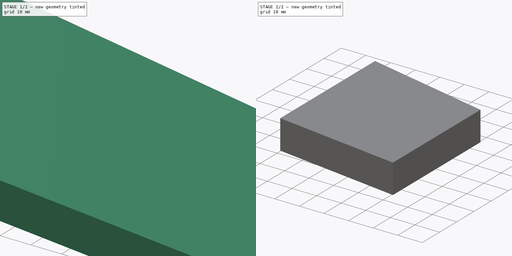
[diagram: build sequence overview — one tinted view per stage of 2, left to right]
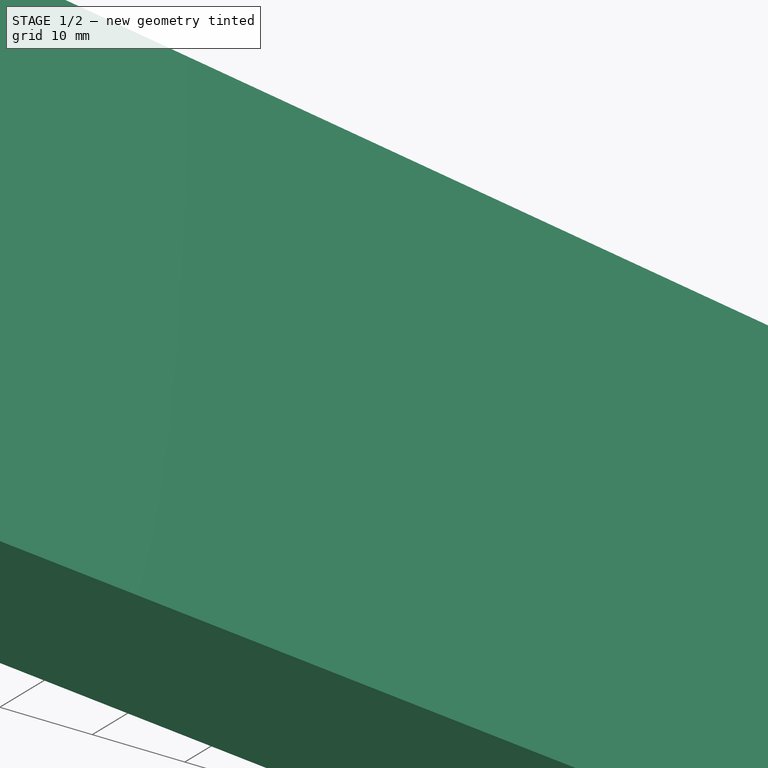
[diagram: stage 1 of 2 — iso view after this stage's code; geometry added in this stage tinted green]
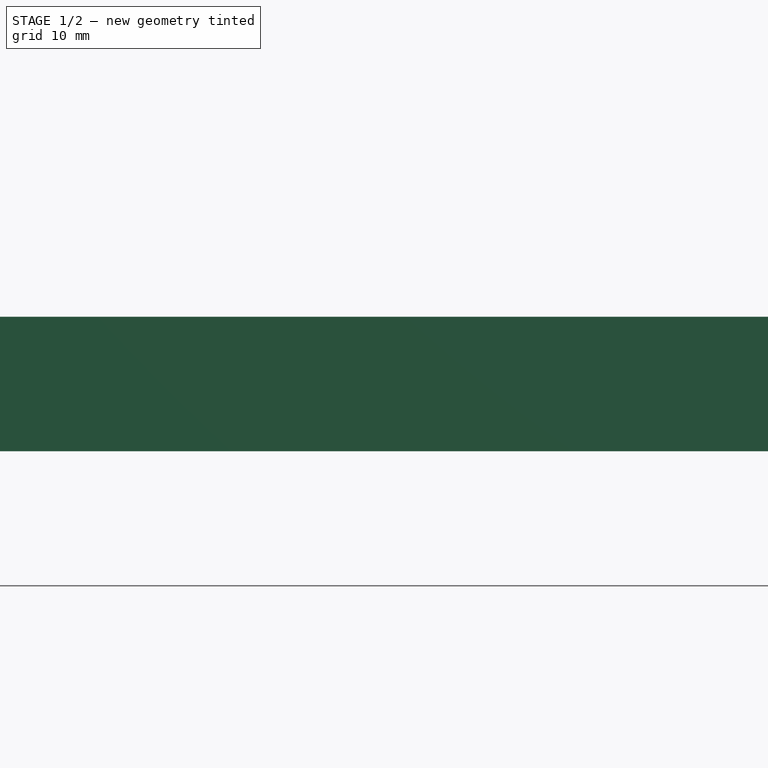
[diagram: stage 1 of 2 — front view after this stage's code; geometry added in this stage tinted green]
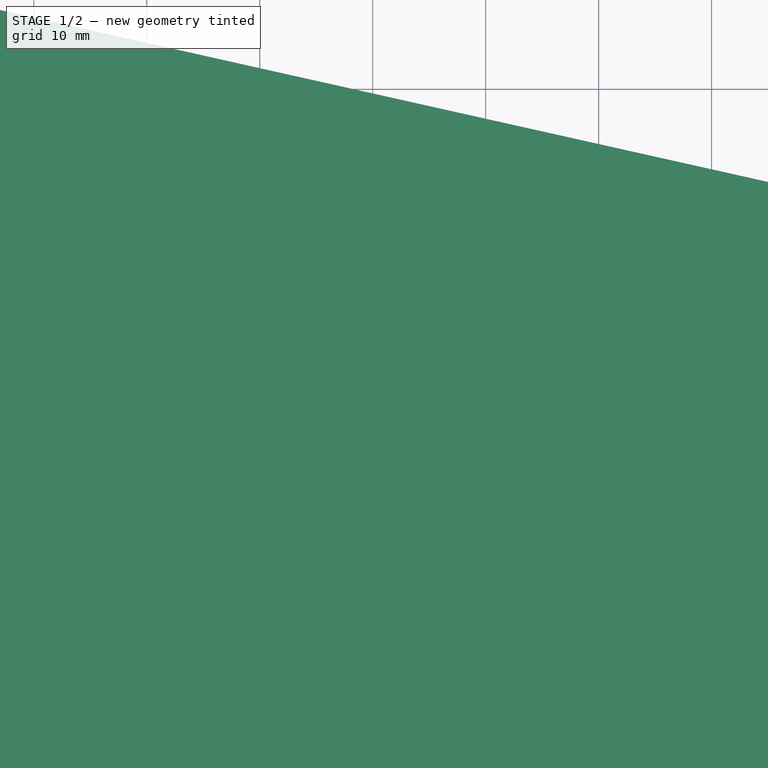
[diagram: stage 1 of 2 — top view after this stage's code; geometry added in this stage tinted green]
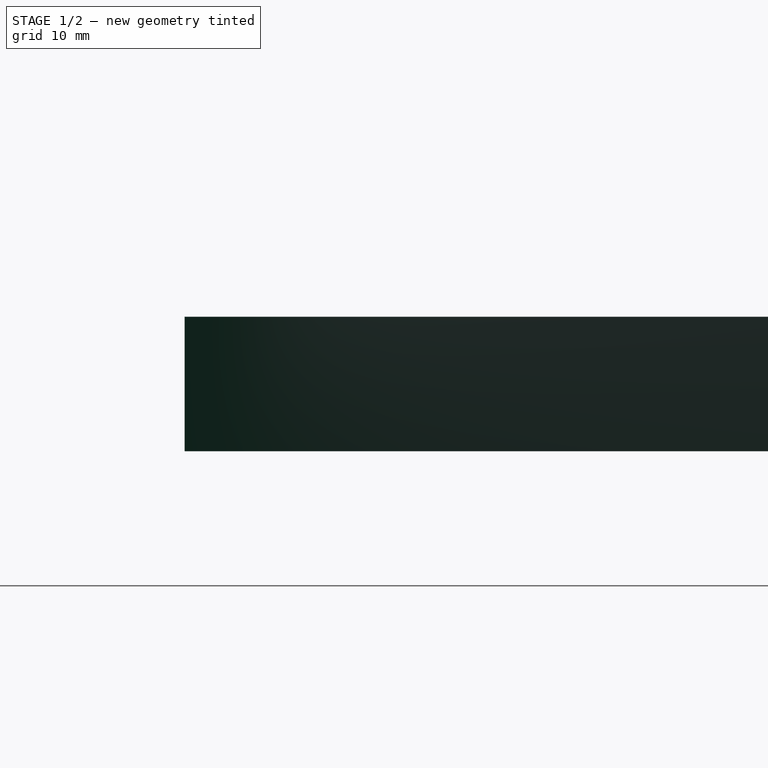
[diagram: stage 1 of 2 — right view after this stage's code; geometry added in this stage tinted green]
FCSTD DOCUMENT  (FreeCAD 0.20R29603 (Git))
Label: LegSpacer
License: All rights reserved
LicenseURL: http://en.wikipedia.org/wiki/All_rights_reserved
objects: App::DocumentObjectGroup×3, Sketcher::SketchObject×2, PartDesign::Pad×1, PartDesign::CoordinateSystem×1, App::FeaturePython×1, PartDesign::Pocket×1, PartDesign::Body×1, App::Part×1
note: 8 computed .brp shape members not serialized (recipe doc carries the construction recipe); baked Part::Feature solids carry a one-line shape summary decoded from their .brp
EXTERNAL_REF file=Parameters.FCStd obj=Spreadsheet

FEATURE [Sketcher::SketchObject] Sketch
  FullyConstrained = false
  MapMode = 5
  Support = -> [XY_Plane]
  expr: Constraints[10] = <<Parameters>>#<<DeskDimensions>>.Leg_Top
  expr: Constraints[16] = <<Parameters>>#<<DeskDimensions>>.Leg_Bottom
  expr: Constraints[5] = <<Parameters>>#<<DeskDimensions>>.Leg_Length
  sketch-geometry (8):
    g0: LineSegment StartX=0 StartY=114.3 StartZ=0 EndX=0 EndY=0 EndZ=0
    g1: LineSegment StartX=0 StartY=0 StartZ=0 EndX=762 EndY=-107.092 EndZ=0
    g2: LineSegment StartX=0 StartY=-107.092 StartZ=0 EndX=762 EndY=-107.092 EndZ=0
    g3: LineSegment StartX=762 StartY=-107.092 StartZ=0 EndX=762 EndY=534.568 EndZ=0
    g4: LineSegment StartX=762 StartY=534.568 StartZ=0 EndX=0 EndY=534.568 EndZ=0
    g5: LineSegment StartX=0 StartY=534.568 StartZ=0 EndX=0 EndY=-107.092 EndZ=0
    g6: LineSegment StartX=762 StartY=-107.092 StartZ=0 EndX=762 EndY=-56.2921 EndZ=0
    g7: LineSegment StartX=762 StartY=-56.2921 StartZ=0 EndX=0 EndY=114.3 EndZ=0
  constraints (22):
    c: Coincident(g4,g5)
    c: Coincident(g5,g2)
    c: Horizontal(g4)
    c: Vertical(g3)
    c: Vertical(g5)
    c: DistanceX(g4,g4) = 762
    c: Coincident(g1,g2)
    c: Angle(g1,g0) = 1.71042
    c: Horizontal(g2)
    c: Vertical(g0)
    c: DistanceY(g0,g0) = 114.3
    c: PointOnObject(g0,g5)
    c: Coincident(g6,g1)
    c: Vertical(g6)
    c: Coincident(g7,g6)
    c: Coincident(g7,g0)
    c: DistanceY(g6,g6) = 50.8
    c: Coincident(g3,g1)
    c: Coincident(g4,g3)
    c: Coincident(g1,g0)
    c: DistanceX(g0) = 0
    c: DistanceY(g0) = 0
FEATURE [PartDesign::Pad] Pad
  Direction = (0,0,1)
  Length = 11.9062
  Length2 = 10
  Profile = -> Sketch
  ReferenceAxis = -> Sketch [N_Axis]
  Type = 0
  expr: Length = <<Parameters>>#<<DeskDimensions>>.Stock_Thickness
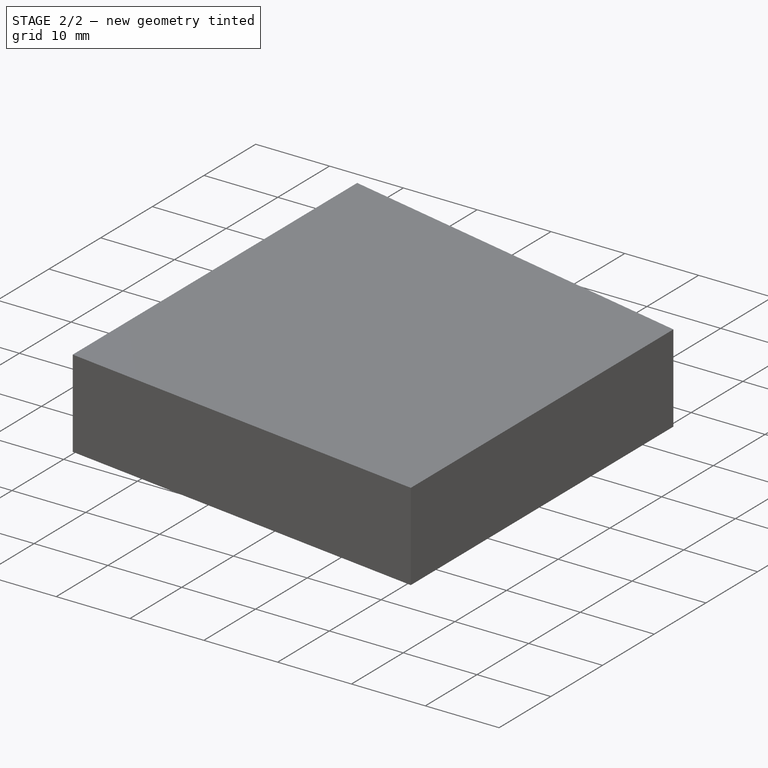
[diagram: stage 2 of 2 — iso view after this stage's code; geometry added in this stage tinted green]
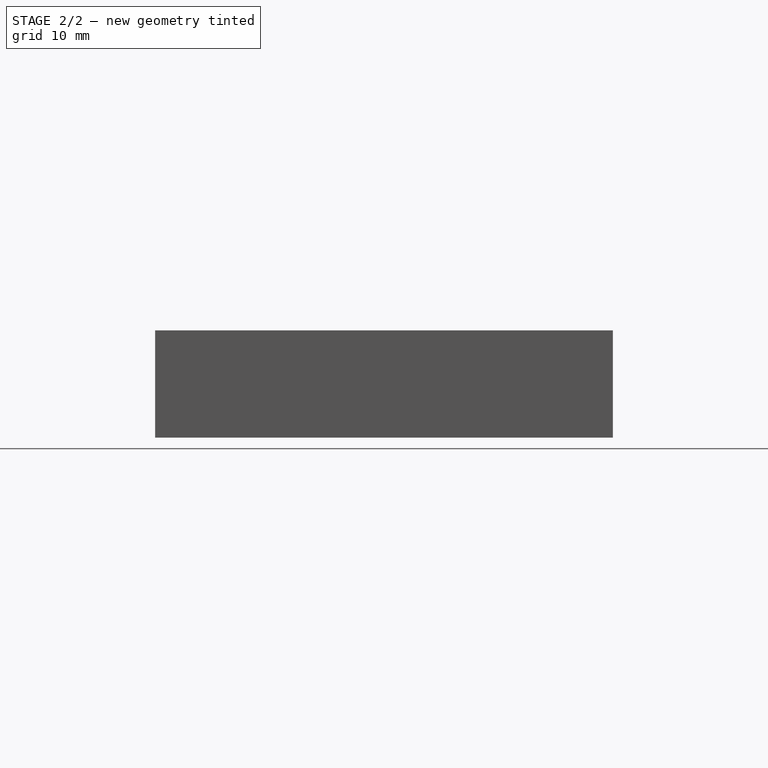
[diagram: stage 2 of 2 — front view after this stage's code; geometry added in this stage tinted green]
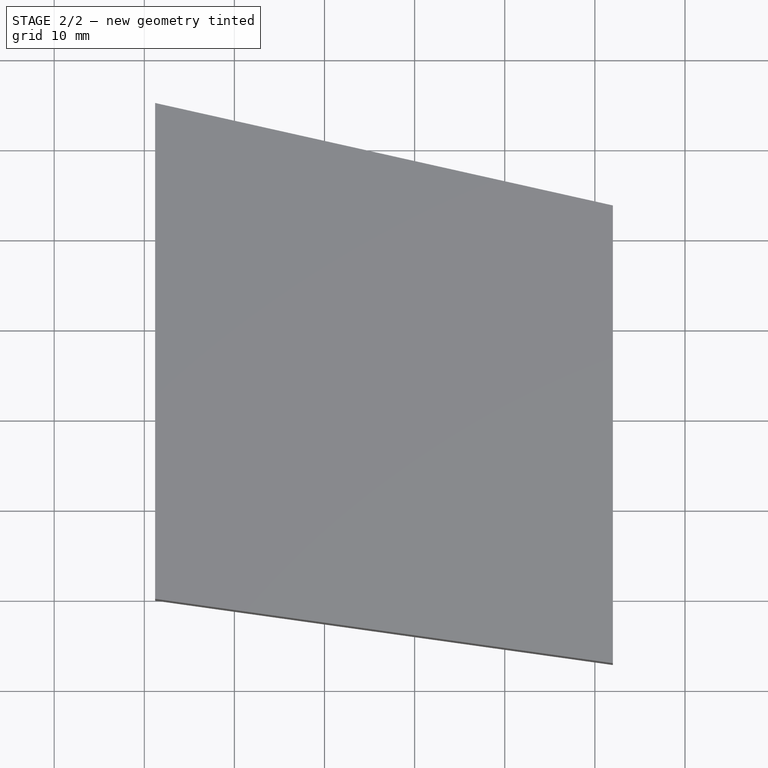
[diagram: stage 2 of 2 — top view after this stage's code; geometry added in this stage tinted green]
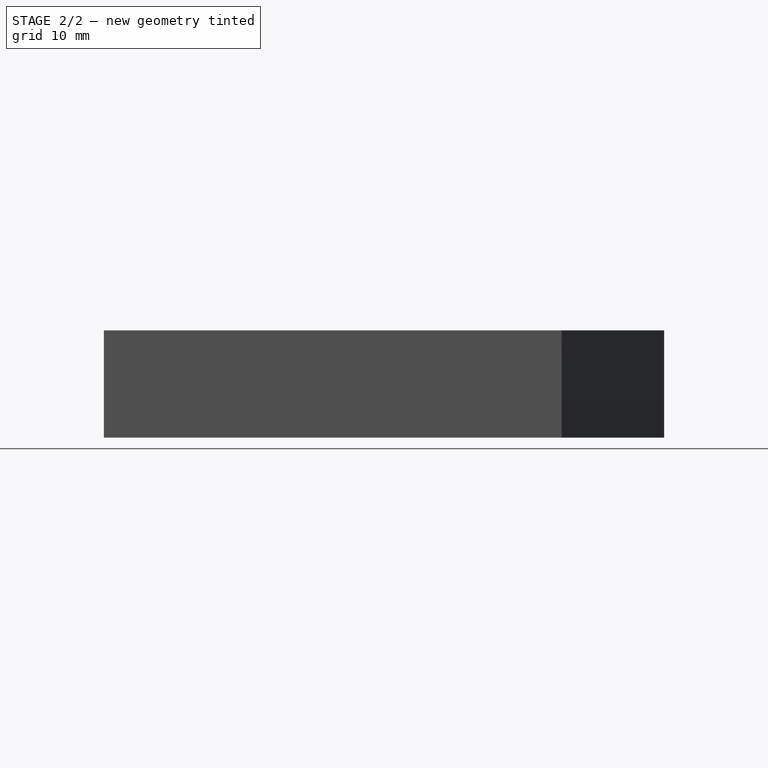
[diagram: stage 2 of 2 — right view after this stage's code; geometry added in this stage tinted green]
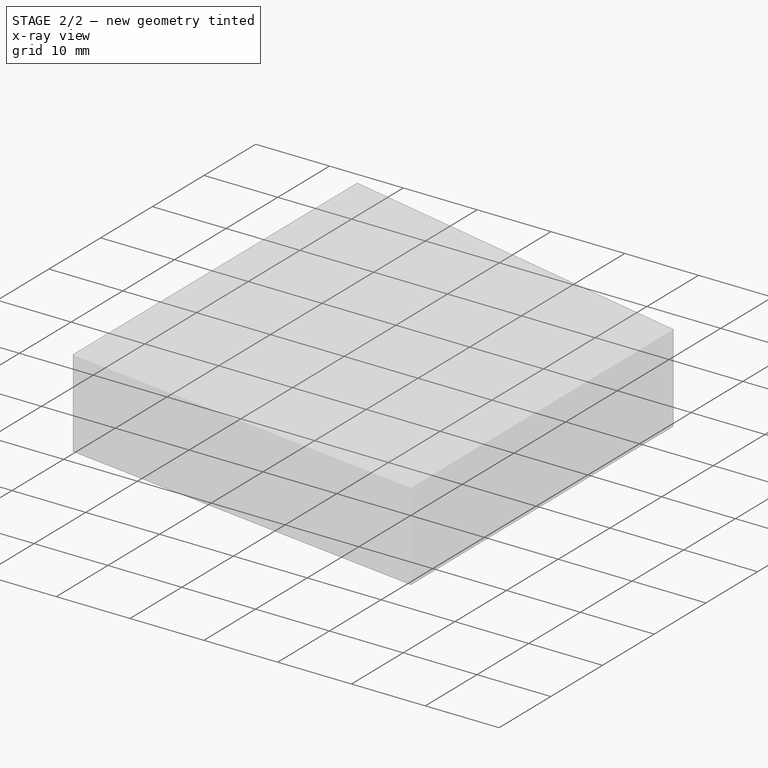
[diagram: stage 2 of 2 — x-ray composite at the iso view; earlier geometry ghosted, this stage's added geometry solid]
FEATURE [App::DocumentObjectGroup] Parts
FEATURE [PartDesign::CoordinateSystem] LCS_Origin
  AttacherType = Attacher::AttachEngine3D
  MapMode = 2
  Support = -> [X_Axis001]
FEATURE [App::DocumentObjectGroup] Constraints
FEATURE [App::FeaturePython] Variables  # WARN: FeaturePython — macro-defined, semantics opaque (R4)
  Type = App::PropertyContainer
FEATURE [App::DocumentObjectGroup] Configurations
FEATURE [Sketcher::SketchObject] Sketch001
  AttachmentOffset = pos=(0,0,11.9062) rot=(0,0,1;0rad)
  FullyConstrained = true
  MapMode = 5
  Placement = pos=(0,0,11.9062) rot=(0,0,1;0rad)
  Support = -> [XY_Plane]
  expr: .AttachmentOffset.Base.z = Parameters#<<DeskDimensions>>.Stock_Thickness
  expr: Constraints[8] = Parameters#<<DeskDimensions>>.Leg_Length - 2"
  expr: Constraints[9] = Parameters#<<DeskDimensions>>.Table_Length
  sketch-geometry (4):
    g0: LineSegment StartX=0 StartY=685.8 StartZ=0 EndX=711.2 EndY=685.8 EndZ=0
    g1: LineSegment StartX=711.2 StartY=685.8 StartZ=0 EndX=711.2 EndY=-685.8 EndZ=0
    g2: LineSegment StartX=711.2 StartY=-685.8 StartZ=0 EndX=0 EndY=-685.8 EndZ=0
    g3: LineSegment StartX=0 StartY=-685.8 StartZ=0 EndX=0 EndY=685.8 EndZ=0
  constraints (11):
    c: Coincident(g0,g1)
    c: Coincident(g1,g2)
    c: Coincident(g2,g3)
    c: Coincident(g3,g0)
    c: Horizontal(g0)
    c: Horizontal(g2)
    c: Vertical(g1)
    c: Vertical(g3)
    c: DistanceX(g0,g0) = 711.2
    c: DistanceY(g3,g3) = 1371.6
    c: Symmetric(g2,g0,g-1)
FEATURE [PartDesign::Pocket] Pocket
  BaseFeature = -> Pad
  Direction = (0,0,-1)
  Length = 11.9062
  Length2 = 5
  Profile = -> Sketch001
  ReferenceAxis = -> Sketch001 [N_Axis]
  Type = 0
  expr: Length = Parameters#<<DeskDimensions>>.Stock_Thickness
FEATURE [PartDesign::Body] Body
  Group = -> [Sketch,Pad,Sketch001,Pocket]
  Origin = -> Origin
  Tip = -> Pocket
FEATURE [App::Part] Model
  Group = -> [LCS_Origin,Constraints,Variables,Configurations,Body]
  Origin = -> Origin001
  Type = Assembly
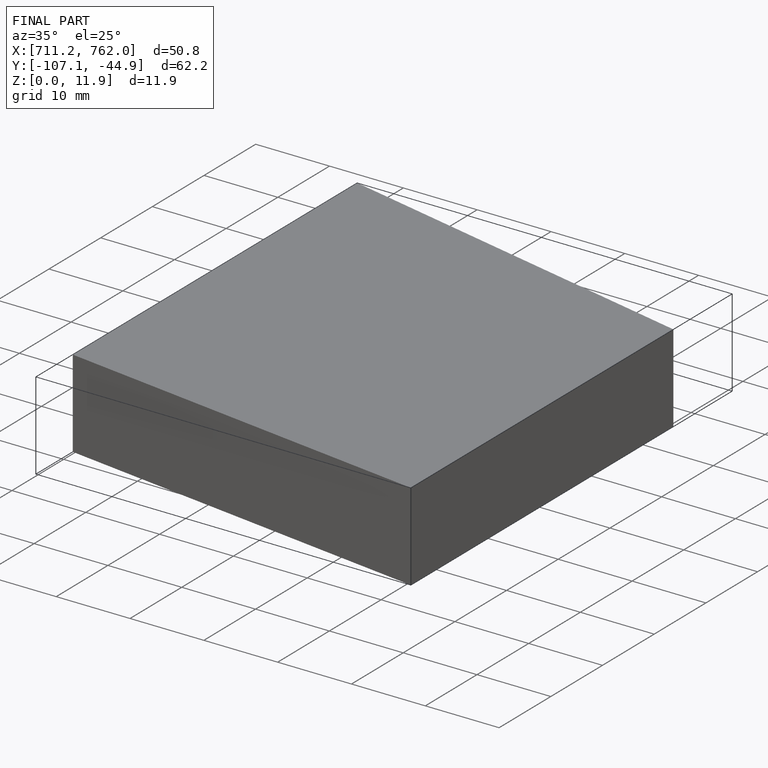
[diagram: finished part — iso view with bounding-box wireframe]
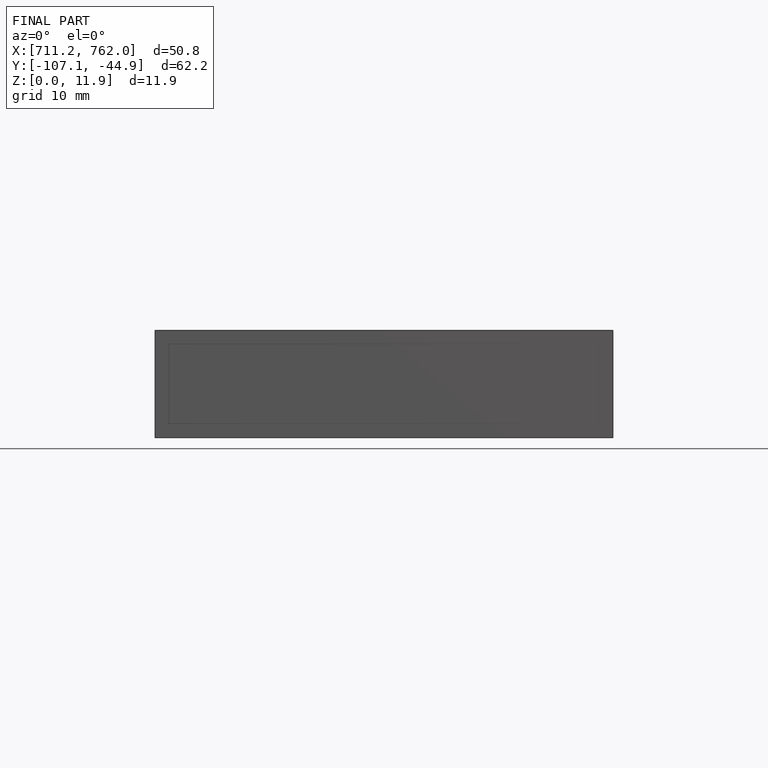
[diagram: finished part — front view with bounding-box wireframe]
